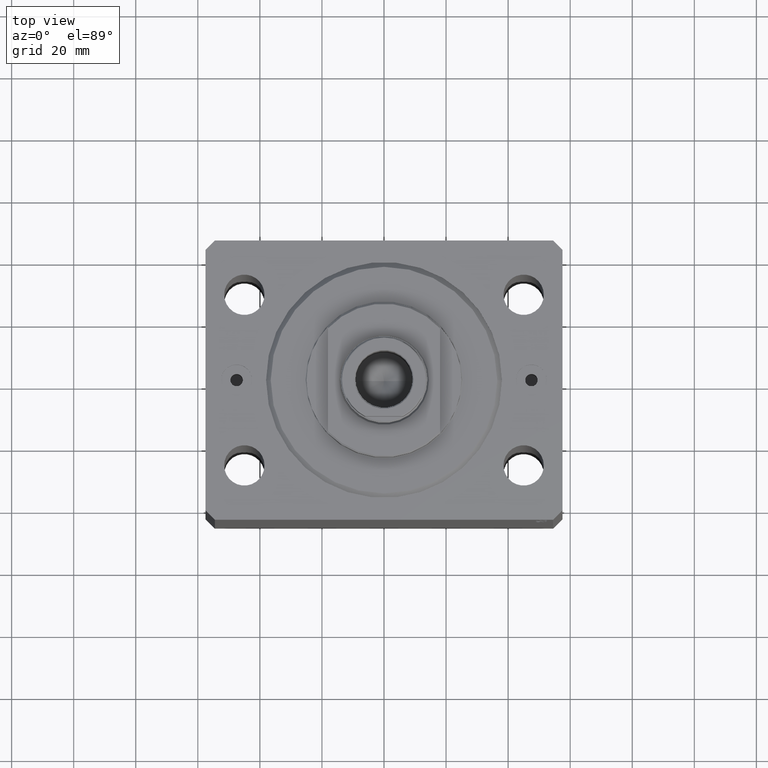
[diagram: clean part render]
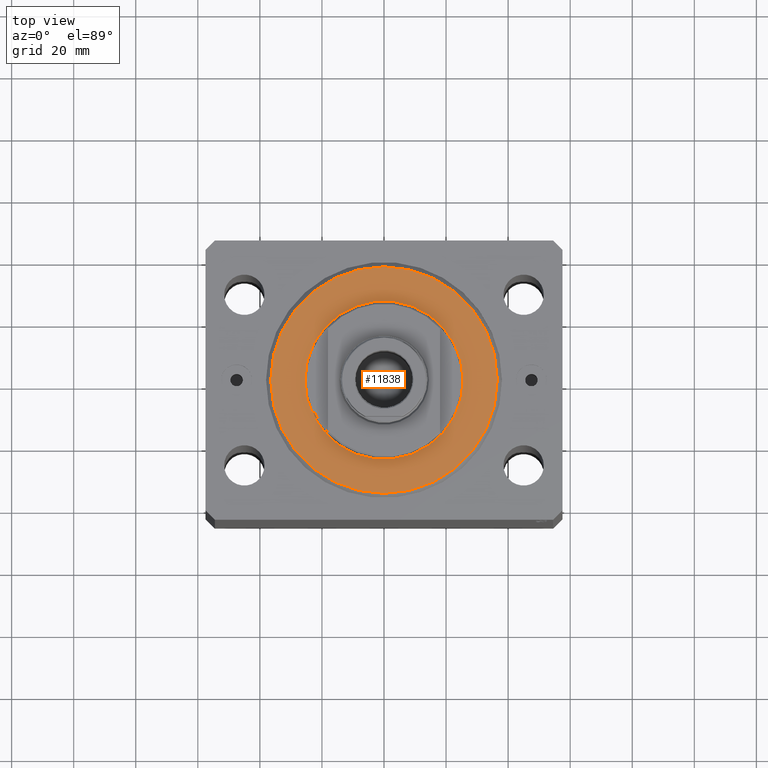
[diagram: same view with one face highlighted and labeled with its STEP entity id]
A machine part, top view. The second image highlights one B-rep face of the part: STEP entity #11838.
In plain terms, the highlighted planar face has unit normal (0, 0, -1).
Its self-contained STEP definition (entity closure, byte-faithful):
#294 = EDGE_CURVE ( 'NONE', #35084, #22880, #41765, .T. ) ;
#809 = EDGE_LOOP ( 'NONE', ( #37825, #16357 ) ) ;
#1914 = VERTEX_POINT ( 'NONE', #31657 ) ;
#2031 = FACE_BOUND ( 'NONE', #809, .T. ) ;
#2999 = CARTESIAN_POINT ( 'NONE',  ( -25.50000000000000355, 3.122849337825751011E-15, 2.168404344971008868E-16 ) ) ;
#5676 = DIRECTION ( 'NONE',  ( -0.000000000000000000, -0.000000000000000000, -1.000000000000000000 ) ) ;
#5898 = CARTESIAN_POINT ( 'NONE',  ( 0.000000000000000000, 0.000000000000000000, 0.000000000000000000 ) ) ;
#5944 = CARTESIAN_POINT ( 'NONE',  ( -36.50000000000000000, 4.561809326823889791E-15, 0.000000000000000000 ) ) ;
#8867 = EDGE_CURVE ( 'NONE', #1914, #29607, #12582, .T. ) ;
#10289 = ORIENTED_EDGE ( 'NONE', *, *, #16136, .T. ) ;
#10400 = AXIS2_PLACEMENT_3D ( 'NONE', #26102, #25885, #43386 ) ;
#11838 = ADVANCED_FACE ( 'NONE', ( #2031, #19576 ), #29249, .F. ) ;
#12442 = DIRECTION ( 'NONE',  ( 1.000000000000000000, 0.000000000000000000, 0.000000000000000000 ) ) ;
#12582 = CIRCLE ( 'NONE', #10400, 25.50000000000000355 ) ;
#12608 = DIRECTION ( 'NONE',  ( 0.000000000000000000, 0.000000000000000000, 1.000000000000000000 ) ) ;
#13452 = AXIS2_PLACEMENT_3D ( 'NONE', #5898, #5676, #26799 ) ;
#15091 = CARTESIAN_POINT ( 'NONE',  ( 0.000000000000000000, 0.000000000000000000, 0.000000000000000000 ) ) ;
#15815 = DIRECTION ( 'NONE',  ( 0.000000000000000000, 0.000000000000000000, 1.000000000000000000 ) ) ;
#16136 = EDGE_CURVE ( 'NONE', #22880, #35084, #32124, .T. ) ;
#16293 = CIRCLE ( 'NONE', #34955, 25.50000000000000355 ) ;
#16357 = ORIENTED_EDGE ( 'NONE', *, *, #39044, .T. ) ;
#19094 = AXIS2_PLACEMENT_3D ( 'NONE', #42112, #12608, #24815 ) ;
#19576 = FACE_OUTER_BOUND ( 'NONE', #35906, .T. ) ;
#22880 = VERTEX_POINT ( 'NONE', #36960 ) ;
#24815 = DIRECTION ( 'NONE',  ( 1.000000000000000000, 0.000000000000000000, -0.000000000000000000 ) ) ;
#25885 = DIRECTION ( 'NONE',  ( 0.000000000000000000, 0.000000000000000000, 1.000000000000000000 ) ) ;
#26102 = CARTESIAN_POINT ( 'NONE',  ( 0.000000000000000000, 0.000000000000000000, 0.000000000000000000 ) ) ;
#26799 = DIRECTION ( 'NONE',  ( 1.000000000000000000, 0.000000000000000000, 0.000000000000000000 ) ) ;
#28792 = DIRECTION ( 'NONE',  ( -0.000000000000000000, -0.000000000000000000, -1.000000000000000000 ) ) ;
#29249 = PLANE ( 'NONE',  #19094 ) ;
#29607 = VERTEX_POINT ( 'NONE', #2999 ) ;
#31657 = CARTESIAN_POINT ( 'NONE',  ( 25.50000000000000355, 0.000000000000000000, 2.168404344971008868E-16 ) ) ;
#32124 = CIRCLE ( 'NONE', #13452, 36.50000000000000000 ) ;
#34955 = AXIS2_PLACEMENT_3D ( 'NONE', #43199, #15815, #12442 ) ;
#35084 = VERTEX_POINT ( 'NONE', #5944 ) ;
#35906 = EDGE_LOOP ( 'NONE', ( #10289, #41015 ) ) ;
#36960 = CARTESIAN_POINT ( 'NONE',  ( 36.50000000000000000, 0.000000000000000000, 0.000000000000000000 ) ) ;
#37825 = ORIENTED_EDGE ( 'NONE', *, *, #8867, .T. ) ;
#39044 = EDGE_CURVE ( 'NONE', #29607, #1914, #16293, .T. ) ;
#41015 = ORIENTED_EDGE ( 'NONE', *, *, #294, .T. ) ;
#41765 = CIRCLE ( 'NONE', #42564, 36.50000000000000000 ) ;
#42112 = CARTESIAN_POINT ( 'NONE',  ( 0.000000000000000000, 0.000000000000000000, 0.000000000000000000 ) ) ;
#42486 = DIRECTION ( 'NONE',  ( 1.000000000000000000, 0.000000000000000000, 0.000000000000000000 ) ) ;
#42564 = AXIS2_PLACEMENT_3D ( 'NONE', #15091, #28792, #42486 ) ;
#43199 = CARTESIAN_POINT ( 'NONE',  ( 0.000000000000000000, 0.000000000000000000, 0.000000000000000000 ) ) ;
#43386 = DIRECTION ( 'NONE',  ( 1.000000000000000000, 0.000000000000000000, 0.000000000000000000 ) ) ;